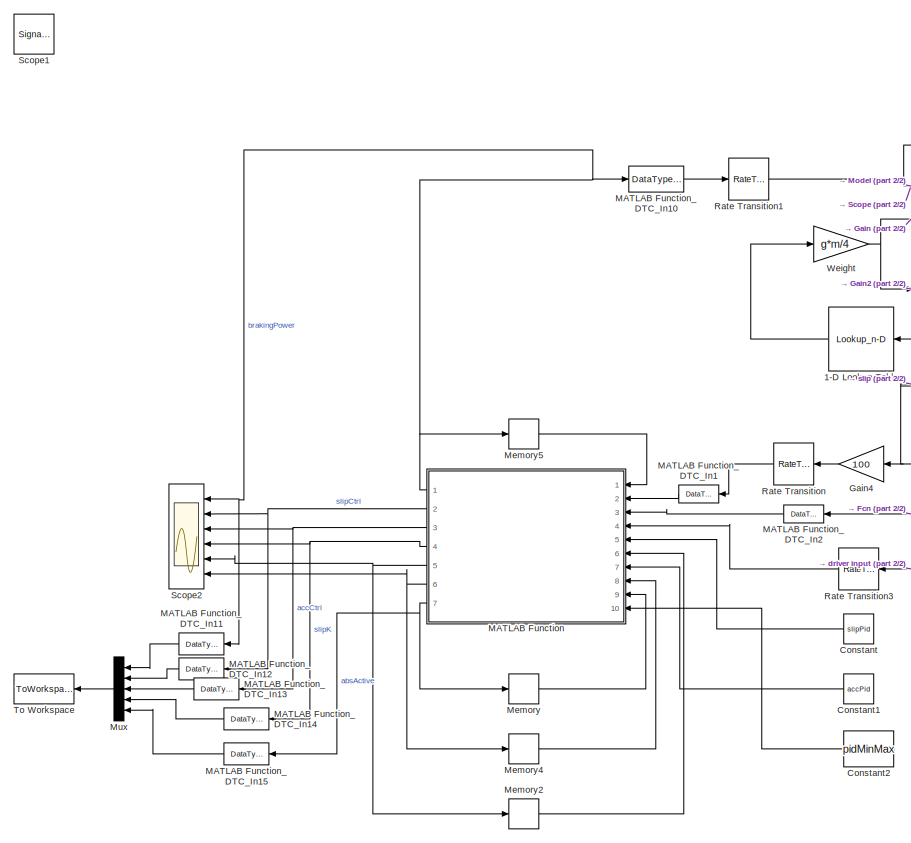
[diagram: root canvas - part 1/2, left side, full height]
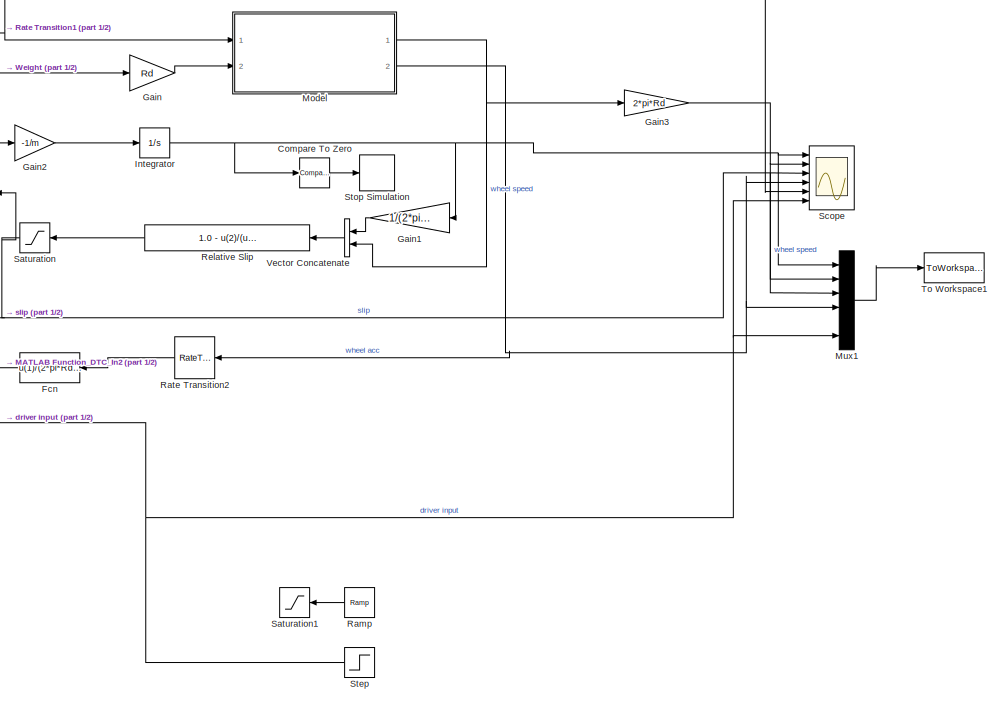
[diagram: root canvas - part 2/2, right side, full height]
MODEL slx_188004675104
KIND model
CONFIG InitFcn = initAbsSim\n
CONFIG StartFcn = initAbsSim\n
WORKSPACE source: MAT-file member
WORKSPACE errors = [0 0]
BLOCK [Lookup_n-D] 1-D Lookup Table
  BreakpointsForDimension1 = [0:100]
  NumberOfTableDimensions = 1
  OutDataTypeStr = double
  Ports = [1, 1]
  RndMeth = Simplest
  Table = tyreData(1:101)
  TableDataTypeStr = double
BLOCK [Reference] Compare To Zero  REF=simulink/Logic and Bit
Operations/Compare
To Zero
  OutDataTypeStr = boolean
  Ports = [1, 1]
  SourceBlock = simulink/Logic and Bit\nOperations/Compare\nTo Zero
  SourceType = Compare To Zero
  ZeroCross = on
  relop = <=
BLOCK [Constant] Constant
  Value = slipPid
BLOCK [Constant] Constant1
  OutDataTypeStr = int16
  Value = accPid
BLOCK [Constant] Constant2
  Value = pidMinMax
BLOCK [Fcn] Fcn
  Expr = u(1)/(2*pi*Rd)*0.00125*16*2048
BLOCK [Gain] Gain
  Gain = Rd
  OutDataTypeStr = double
  ParamDataTypeStr = Inherit: Inherit via internal rule
  SaturateOnIntegerOverflow = off
BLOCK [Gain] Gain1
  Gain = 1/(2*pi*Rd)
  OutDataTypeStr = double
  ParamDataTypeStr = Inherit: Inherit via internal rule
  SaturateOnIntegerOverflow = off
BLOCK [Gain] Gain2
  Gain = -1/m
  OutDataTypeStr = double
  ParamDataTypeStr = Inherit: Inherit via internal rule
  SaturateOnIntegerOverflow = off
BLOCK [Gain] Gain3
  Gain = 2*pi*Rd
  OutDataTypeStr = double
  ParamDataTypeStr = Inherit: Inherit via internal rule
  SaturateOnIntegerOverflow = off
BLOCK [Gain] Gain4
  Gain = 100
  OutDataTypeStr = double
  ParamDataTypeStr = Inherit: Inherit via internal rule
  SaturateOnIntegerOverflow = off
BLOCK [Integrator] Integrator
  InitialCondition = v0
  Ports = [1, 1]
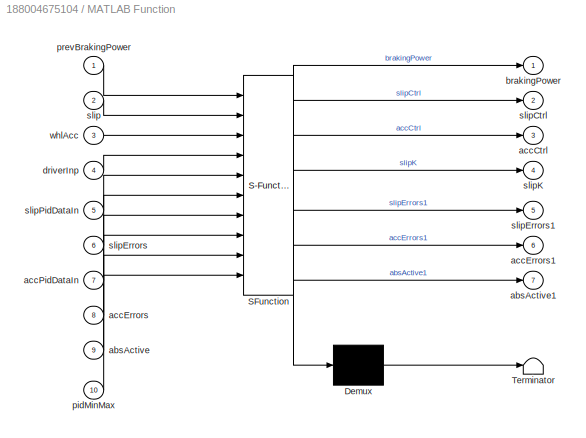
BLOCK [SubSystem] MATLAB Function
  ErrorFcn = Stateflow.Translate.translate
  FunctionWithSeparateData = off
  MaskHideContents = off
  MinAlgLoopOccurrences = off
  Opaque = off
  PermitHierarchicalResolution = ExplicitOnly
  Ports = [10, 7]
  PropExecContextOutsideSubsystem = off
  RTWSystemCode = Auto
  RequestExecContextInheritance = off
  SFBlockType = MATLAB Function
  StartFcn = pidParams;
  SystemSampleTime = 0.01
  TreatAsAtomicUnit = on
BLOCK [Demux] MATLAB Function/ Demux 
  Outputs = 1
  Ports = [1, 1]
BLOCK [S-Function] MATLAB Function/ SFunction 
  EnableBusSupport = on
  FunctionName = sf_sfun
  PortCounts = [10 8]
  Ports = [10, 8]
  Tag = Stateflow S-Function absSimulation 2
BLOCK [Terminator] MATLAB Function/ Terminator 
BLOCK [Inport] MATLAB Function/absActive
  IconDisplay = Port number
  Port = 9
BLOCK [Outport] MATLAB Function/absActive1
  IconDisplay = Port number
  Port = 7
BLOCK [Outport] MATLAB Function/accCtrl
  IconDisplay = Port number
  Port = 3
BLOCK [Inport] MATLAB Function/accErrors
  IconDisplay = Port number
  Port = 8
BLOCK [Outport] MATLAB Function/accErrors1
  IconDisplay = Port number
  Port = 6
BLOCK [Inport] MATLAB Function/accPidDataIn
  IconDisplay = Port number
  Port = 7
BLOCK [Outport] MATLAB Function/brakingPower
  IconDisplay = Port number
BLOCK [Inport] MATLAB Function/driverInp
  IconDisplay = Port number
  Port = 4
BLOCK [Inport] MATLAB Function/pidMinMax
  IconDisplay = Port number
  Port = 10
BLOCK [Inport] MATLAB Function/prevBrakingPower
  IconDisplay = Port number
BLOCK [Inport] MATLAB Function/slip
  IconDisplay = Port number
  Port = 2
BLOCK [Outport] MATLAB Function/slipCtrl
  IconDisplay = Port number
  Port = 2
BLOCK [Inport] MATLAB Function/slipErrors
  IconDisplay = Port number
  Port = 6
BLOCK [Outport] MATLAB Function/slipErrors1
  IconDisplay = Port number
  Port = 5
BLOCK [Outport] MATLAB Function/slipK
  IconDisplay = Port number
  Port = 4
BLOCK [Inport] MATLAB Function/slipPidDataIn
  IconDisplay = Port number
  Port = 5
BLOCK [Inport] MATLAB Function/whlAcc
  IconDisplay = Port number
  Port = 3
BLOCK [DataTypeConversion] MATLAB Function_DTC_In1
  LockScale = on
  OutDataTypeStr = int16
  RndMeth = Floor
  SaturateOnIntegerOverflow = off
  Tag = InsertedToIsolateUnsupportedBlock
BLOCK [DataTypeConversion] MATLAB Function_DTC_In10
  RndMeth = Floor
  SaturateOnIntegerOverflow = off
BLOCK [DataTypeConversion] MATLAB Function_DTC_In11
  RndMeth = Floor
  SaturateOnIntegerOverflow = off
BLOCK [DataTypeConversion] MATLAB Function_DTC_In12
  RndMeth = Floor
  SaturateOnIntegerOverflow = off
BLOCK [DataTypeConversion] MATLAB Function_DTC_In13
  RndMeth = Floor
  SaturateOnIntegerOverflow = off
BLOCK [DataTypeConversion] MATLAB Function_DTC_In14
  RndMeth = Floor
  SaturateOnIntegerOverflow = off
BLOCK [DataTypeConversion] MATLAB Function_DTC_In15
  RndMeth = Floor
  SaturateOnIntegerOverflow = off
BLOCK [DataTypeConversion] MATLAB Function_DTC_In2
  LockScale = on
  OutDataTypeStr = int16
  RndMeth = Floor
  SaturateOnIntegerOverflow = off
  Tag = InsertedToIsolateUnsupportedBlock
BLOCK [Memory] Memory
  InheritSampleTime = on
BLOCK [Memory] Memory2
  InheritSampleTime = on
  X0 = [0 0]
BLOCK [Memory] Memory4
  InheritSampleTime = on
  X0 = [0 0]
BLOCK [Memory] Memory5
  InheritSampleTime = on
BLOCK [ModelReference] Model
  CopyOfModelName = brakeModel.slx
  DefaultDataLogging = on
  ModelNameDialog = brakeModel.slx
  ModelReferenceVersion = 1.21
  Ports = [2, 2]
BLOCK [Mux] Mux
  DisplayOption = bar
  Inputs = 5
  Ports = [5, 1]
BLOCK [Mux] Mux1
  DisplayOption = bar
  Inputs = 6
  Ports = [6, 1]
BLOCK [Reference] Ramp  REF=simulink/Sources/Ramp
  Ports = [0, 1]
  SourceBlock = simulink/Sources/Ramp
  SourceType = Ramp
  VectorParams1D = on
  X0 = 0
  slope = 10
  start = 0
BLOCK [RateTransition] Rate Transition
  OutPortSampleTime = 0.01
BLOCK [RateTransition] Rate Transition1
  OutPortSampleTime = 0.01
  OutPortSampleTimeOpt = Inherit
BLOCK [RateTransition] Rate Transition2
  OutPortSampleTime = 0.01
BLOCK [RateTransition] Rate Transition3
  OutPortSampleTime = 0.01
BLOCK [Fcn] Relative Slip
  Expr = 1.0 - u(2)/(u(1) + (u(1)==0)*eps)
BLOCK [Saturate] Saturation
  InputPortMap = u0
  LowerLimit = 0
  OutDataTypeStr = double
  Ports = [1, 1]
  UpperLimit = 1.0
BLOCK [Saturate] Saturation1
  InputPortMap = u0
  LowerLimit = 0
  Ports = [1, 1]
  UpperLimit = 500
BLOCK [Scope] Scope
  DataFormat = StructureWithTime
  Floating = off
  LegendLocations = 0.85327     0.91452     0.11182    0.028612\n0.84692     0.76001     0.11768    0.028612\n0.88794     0.60551     0.07666    0.028612\n0.85864     0.45243     0.10596    0.028612\n0.82104     0.29793     0.14697    0.028612\n0.84106     0.14485     0.12354    0.028612
  LimitDataPoints = off
  NumInputPorts = 6
  Ports = [6]
  SampleTime = 0
  ShowLegends = on
  YMax = 20~20~0.9~0~100~525
  YMin = 19.4~2.5~0~-80~0~475
  ZoomMode = yonly
BLOCK [SignalViewerScope] Scope1
  IOType = viewer
  MaxDataPoints = 7500
  NumInputPorts = 1
  Ports = []
  RefreshTime = 0.035000
  ShowDataMarkers = off
  ShowLegends = off
BLOCK [Scope] Scope2
  DataFormat = StructureWithTime
  Floating = off
  LimitDataPoints = off
  NumInputPorts = 6
  Ports = [6]
  SampleTime = 0
  SaveName = ScopeData1
  ShowLegends = off
  YMax = 500~25000~40000~100~35~8000
  YMin = 0~-10000~-40000~0~-15~-2000
  ZoomMode = yonly
BLOCK [Step] Step
  After = 500
  SampleTime = 0
BLOCK [Stop] Stop Simulation
BLOCK [ToWorkspace] To Workspace
  MaxDataPoints = inf
  Ports = [1]
  SampleTime = -1
  SaveFormat = Timeseries
  VariableName = ctrlData
BLOCK [ToWorkspace] To Workspace1
  MaxDataPoints = inf
  Ports = [1]
  SampleTime = -1
  SaveFormat = Timeseries
  VariableName = carData
BLOCK [Concatenate] Vector Concatenate
  Ports = [2, 1]
BLOCK [Gain] Weight
  Gain = g*m/4
  OutDataTypeStr = double
  ParamDataTypeStr = Inherit: Inherit via internal rule
  SaturateOnIntegerOverflow = off
LINE 1-D Lookup Table:1 -> Weight:1
LINE Compare To Zero:1 -> Stop Simulation:1
LINE Constant1:1 -> MATLAB Function:7
LINE Constant2:1 -> MATLAB Function:10
LINE Constant:1 -> MATLAB Function:5
LINE Fcn:1 -> MATLAB Function_DTC_In2:1
LINE Gain1:1 -> Vector Concatenate:1
LINE Gain2:1 -> Integrator:1
NET Gain3:1 -> Mux1:2, Scope:2
LINE Gain4:1 -> Rate Transition:1
LINE Gain:1 -> Model:2
NET Integrator:1 -> Compare To Zero:1, Gain1:1, Mux1:1, Scope:1
NET MATLAB Function:1 -> MATLAB Function_DTC_In10:1, MATLAB Function_DTC_In11:1, Memory5:1, Scope2:1
NET MATLAB Function:2 -> MATLAB Function_DTC_In12:1, Scope2:2
NET MATLAB Function:3 -> MATLAB Function_DTC_In13:1, Scope2:3
NET MATLAB Function:4 -> MATLAB Function_DTC_In14:1, Scope2:4
NET MATLAB Function:5 -> Memory2:1, Scope2:5
NET MATLAB Function:6 -> Memory4:1, Scope2:6
NET MATLAB Function:7 -> MATLAB Function_DTC_In15:1, Memory:1
LINE MATLAB Function_DTC_In10:1 -> Rate Transition1:1
LINE MATLAB Function_DTC_In11:1 -> Mux:1
LINE MATLAB Function_DTC_In12:1 -> Mux:2
LINE MATLAB Function_DTC_In13:1 -> Mux:3
LINE MATLAB Function_DTC_In14:1 -> Mux:4
LINE MATLAB Function_DTC_In15:1 -> Mux:5
LINE MATLAB Function_DTC_In1:1 -> MATLAB Function:2
LINE MATLAB Function_DTC_In2:1 -> MATLAB Function:3
LINE Memory2:1 -> MATLAB Function:6
LINE Memory4:1 -> MATLAB Function:8
LINE Memory5:1 -> MATLAB Function:1
LINE Memory:1 -> MATLAB Function:9
NET Model:1 -> Gain3:1, Vector Concatenate:2
NET Model:2 -> Mux1:4, Rate Transition2:1, Scope:4
LINE Mux1:1 -> To Workspace1:1
LINE Mux:1 -> To Workspace:1
LINE Ramp:1 -> Saturation1:1
NET Rate Transition1:1 -> Model:1, Scope:5
LINE Rate Transition2:1 -> Fcn:1
LINE Rate Transition3:1 -> MATLAB Function:4
LINE Rate Transition:1 -> MATLAB Function_DTC_In1:1
LINE Relative Slip:1 -> Saturation:1
NET Saturation:1 -> 1-D Lookup Table:1, Gain4:1, Mux1:3, Scope:3
NET Step:1 -> Mux1:6, Rate Transition3:1, Scope:6
LINE Vector Concatenate:1 -> Relative Slip:1
NET Weight:1 -> Gain2:1, Gain:1
note: NET lines group one-source signal fan-out (src -> all destinations, sorted); 1:1 wires keep LINE
